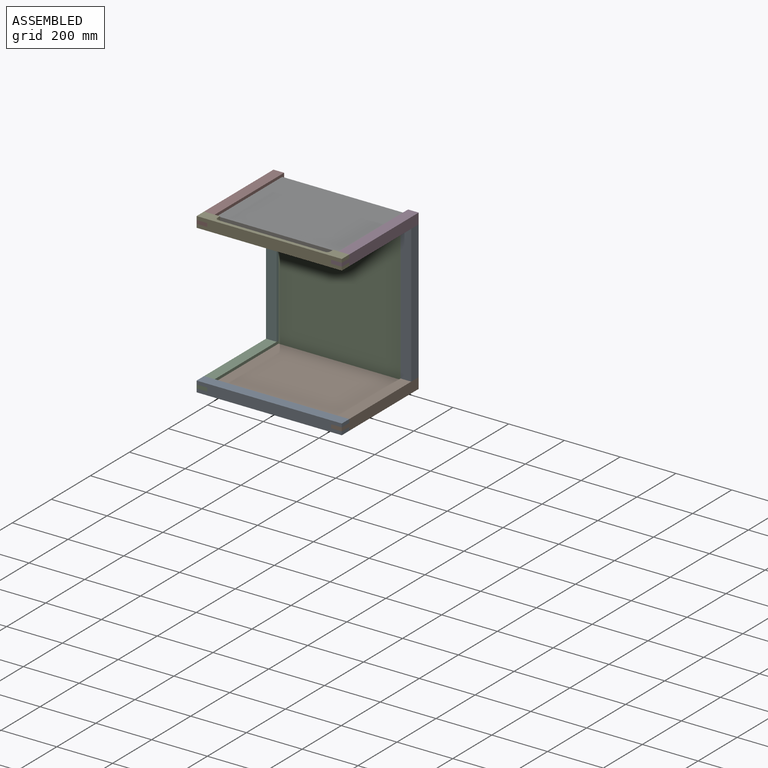
[diagram: assembled view]
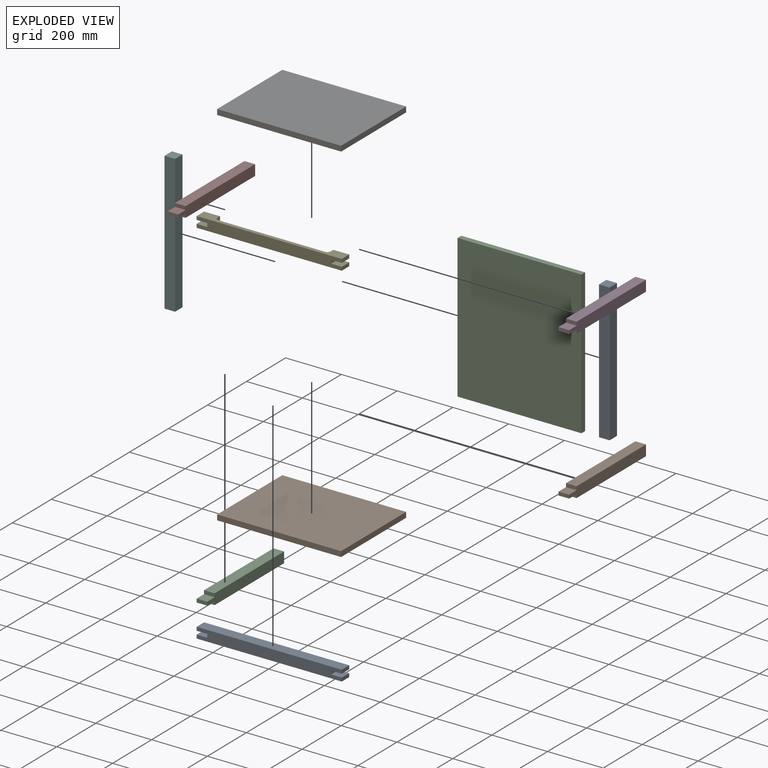
[diagram: exploded view]
GUIDED TOUR — MATED ASSEMBLY (Onshape document ec27074e484e8e78e18357a1, AutoMate assembly ec27074e484e8e78e18357a1_621d93bcc2abb67c88f440d8_a14cb2f1394db533b589dcd8_default)

This assembly has 11 components, labeled P0..P10 below (a component is one placed occurrence of a part; the same part can appear more than once), held together by 10 mates. A mate is a constraint between two components; its type names the relative motion it leaves free:
  FASTENED — locks the two components together rigidly (no relative motion).
Axis/direction vectors are unit vectors and 'through' points are millimeter coordinates, both in the assembly's world frame.

MATES
  1. FASTENED "Fastened 9": P5 <-> P7, direction (-1.000, 0.000, 0.000) through (-78.85, 422.66, 429.18) mm
  2. FASTENED "Fastened 3": P2 <-> P5, direction (-1.000, 0.000, 0.000) through (-78.85, 422.66, -66.12) mm
  3. FASTENED "Fastened 12": P10 <-> P9, direction (0.000, 1.000, 0.000) through (181.50, 413.13, -75.65) mm
  4. FASTENED "Fastened 8": P0 <-> P3, direction (1.000, 0.000, 0.000) through (441.85, 422.66, 429.18) mm
  5. FASTENED "Fastened 2": P8 <-> P1, direction (0.000, -1.000, 0.000) through (403.75, 28.96, -85.17) mm
  6. FASTENED "Fastened 1": P8 <-> P2, direction (0.000, -1.000, 0.000) through (-40.75, 28.96, -85.17) mm
  7. FASTENED "Fastened 10": P9 <-> P8, direction (0.000, 0.000, 1.000) through (181.50, 79.76, -75.65) mm
  8. FASTENED "Fastened 4": P0 <-> P1, direction (1.000, 0.000, 0.000) through (441.85, 422.66, -66.12) mm
  9. FASTENED "Fastened 7": P4 <-> P3, direction (1.000, 0.000, 0.000) through (441.85, 67.06, 467.28) mm
  10. FASTENED "Fastened 11": P6 <-> P4, direction (0.000, 0.000, 1.000) through (181.50, 79.76, 457.75) mm

ASSEMBLY ORDER
  1. P4 — the base component [order verified]
  2. P3 [order verified]
  3. P6 [order verified]
  4. P7 [order verified]
  5. P5 [order verified]
  6. P10 [order verified]
  7. P8 [order verified]
  8. P9 [order verified]
  9. P2 [order verified]
  10. P0 [order verified]
  11. P1 [order verified]
(P2, P3, P7 verified with a relaxed clearance tolerance: the source model stores slight part interference there.)
Order-tag legend:
  [order verified] — this step's position reverses a verified removal order: the component was checked to insert without passing through the ones already placed.

Of the 11 components, 11 carry the full construction recipe — the FeatureScript program that regenerates the part's solid from scratch; the rest are supplied as boundary geometry only.
Each toured component is shown spotlighted twice — in the assembled view, then in the exploded view, where a leader line traces a displaced component back to its assembled socket (saturated green if recipe-attached, orange if geometry-only; every other component desaturated gray) — followed by its recipe or geometry summary and the mates that hold it.
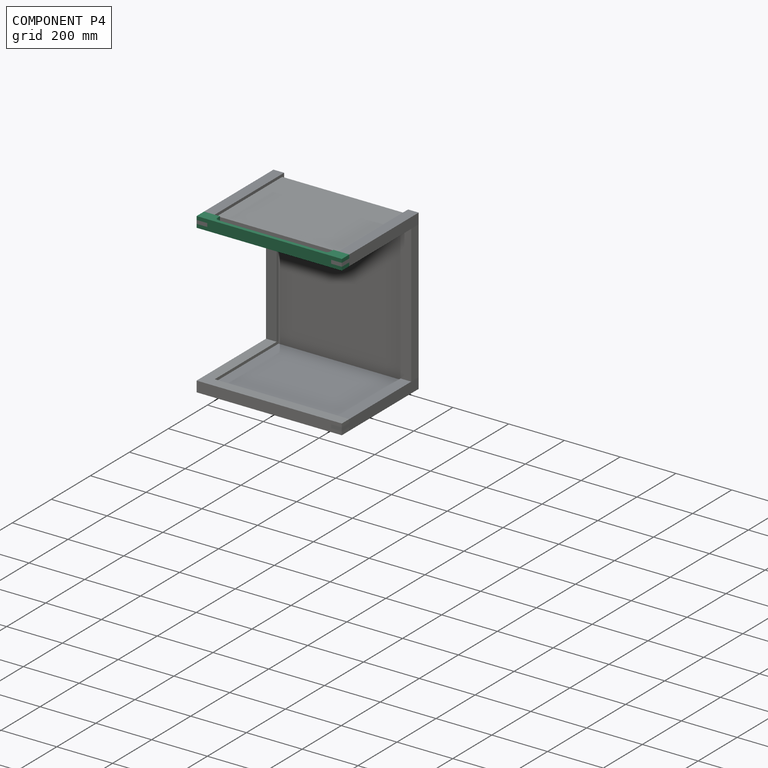
[diagram: component P4 — assembled]
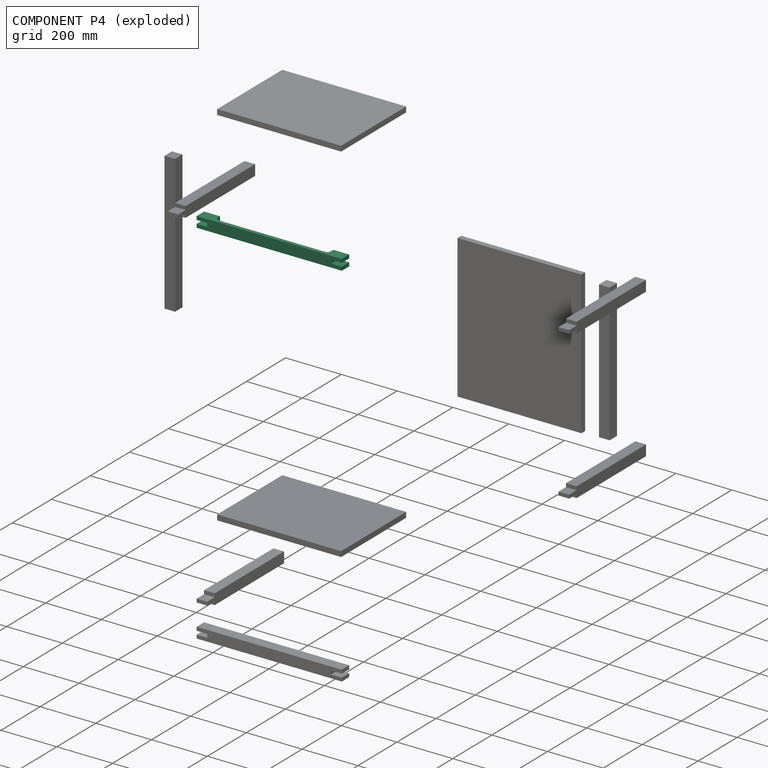
[diagram: component P4 — exploded]
COMPONENT P4 — recipe-attached (CADFS 00448515, mesh-verified: the recipe's output STEP matches this component's geometry to below the mesh-comparison resolution (tessellation chordal tolerance ~0.785 mm)).
Held by: FASTENED mate "Fastened 7" to P3; FASTENED mate "Fastened 11" to P6.
Construction recipe (FeatureScript — the CAD program that rebuilds this solid; sketch coordinates are in the units given by the * unit suffixes, e.g. mm):

FeatureScript 1511;
import(path : "onshape/std/geometry.fs", version : "1511.0");
import(path : "onshape/std/common.fs", version : "1511.0");
const mm = millimeter;
const VERTEX = EntityType.VERTEX;
const EDGE = EntityType.EDGE;
const FACE = EntityType.FACE;
const BODY = EntityType.BODY;
function v(x, y){return vector(x, y);}
function OD(order){return orderDisambiguation(order);}
function OSD(set){return originalSetDisambiguation(set);}
function TD(topology){return topologyDisambiguation(topology);}
function TDD(query){return trueDependencyDisambiguation(query);}
function sQuery(a, b, c) {return sketchEntityQuery(a, b, c);}

annotation { "Feature Type Name" : "Feature", "Feature Type Description" : "" }
export const myFeature = defineFeature(function(context is Context, id is Id, definition is map)
    precondition{}
    {
        {
            var Q0;
            Q0=qCreatedBy(makeId("Front.planeOp"),FACE);
            var sketch = newSketch(context, id + "F0", { "sketchPlane" : qUnion([Q0])});
            skLineSegment(sketch, "E0.bottom", {"start": v(0, 0) * mm, "end": v(520.7, 0) * mm});
            skLineSegment(sketch, "E0.top", {"start": v(0, -38.1) * mm, "end": v(520.7, -38.1) * mm});
            skLineSegment(sketch, "E0.left", {"start": v(0, 0) * mm, "end": v(0, -12.7) * mm});
            skLineSegment(sketch, "E0.right", {"start": v(520.7, 0) * mm, "end": v(520.7, -12.7) * mm});
            skLineSegment(sketch, "E1", {"start": v(0, -12.7) * mm, "end": v(38.1, -12.7) * mm});
            skLineSegment(sketch, "E2", {"start": v(38.1, -12.7) * mm, "end": v(38.1, -25.4) * mm});
            skLineSegment(sketch, "E3", {"start": v(38.1, -25.4) * mm, "end": v(0, -25.4) * mm});
            skLineSegment(sketch, "E4.trimOffspring", {"start": v(0, -25.4) * mm, "end": v(0, -38.1) * mm});
            skLineSegment(sketch, "E5.bottom", {"start": v(520.7, -12.7) * mm, "end": v(482.6, -12.7) * mm});
            skLineSegment(sketch, "E5.top", {"start": v(520.7, -25.4) * mm, "end": v(482.6, -25.4) * mm});
            skLineSegment(sketch, "E5.right", {"start": v(482.6, -12.7) * mm, "end": v(482.6, -25.4) * mm});
            skLineSegment(sketch, "E6.trimOffspring", {"start": v(520.7, -25.4) * mm, "end": v(520.7, -38.1) * mm});
            skSolve(sketch);
        }
        {
            var Q0;
            Q0=makeQuery(id+"F0.imprint","IMPRINT",FACE,{"disambiguationData":[TD([[makeQuery(id+"F0.imprint","IMPRINT",EDGE,{"derivedFrom":sQuery(id+"F0.wireOp",EDGE,"E0.bottom")}),-1.0]])]});
            extrude(context, id + "F1", {"entities" : qUnion([Q0]), "depth" : 38.1 * mm});
        }
        {
            var Q0;
            Q0=makeQuery(id+"F1.opExtrude","SWEPT_FACE",FACE,{"disambiguationData":[OSD([sQuery(id+"F0.wireOp",EDGE,"E0.right")])]});
            cPlane(context, id + "F2", {"entities" : qUnion([Q0]), "cplaneType" : CPlaneType.OFFSET, "offset" : 260.35 * mm, "oppositeDirection" : true, "width" : 152.4 * mm, "height" : 152.4 * mm});
        }
        {
            var Q0;
            Q0=qCreatedBy(id+"F2.planeOp",FACE);
            var sketch = newSketch(context, id + "F3", { "sketchPlane" : qUnion([Q0])});
            skLineSegment(sketch, "E7", {"start": v(0, 0) * mm, "end": v(0, -25.4) * mm});
            skLineSegment(sketch, "E8", {"start": v(0, 0) * mm, "end": v(-25.4, 0) * mm});
            skLineSegment(sketch, "E9", {"start": v(-25.4, 0) * mm, "end": v(0, -25.4) * mm});
            skSolve(sketch);
        }
        {
            var Q0;
            Q0 = qSketchRegion(id + "F3", true);
            extrude(context, id + "F4", {"entities" : qUnion([Q0]), "operationType" : NewBodyOperationType.REMOVE, "endBound" : BoundingType.SYMMETRIC, "oppositeDirection" : true, "depth" : 406.4 * mm, "offsetDistance" : 25.4 * mm});
        }
        {
            var Q0;
            Q0=makeQuery(id+"F4.boolean.opBoolean","COPY",EDGE,{"derivedFrom":makeQuery(id+"F4.opExtrude","CAP_EDGE",EDGE,{"disambiguationData":[OSD([sQuery(id+"F3.wireOp",EDGE,"E9")])],"isStart":true})});
            var Q1;
            Q1=makeQuery(id+"F4.boolean.opBoolean","COPY",EDGE,{"derivedFrom":makeQuery(id+"F4.opExtrude","CAP_EDGE",EDGE,{"disambiguationData":[OSD([sQuery(id+"F3.wireOp",EDGE,"E9")])],"isStart":false})});
            fillet(context, id + "F5", {"entities" : qUnion([Q0, Q1]), "radius" : 9.52 * mm, "tangentPropagation" : true, "allowEdgeOverflow" : false});
        }
    });
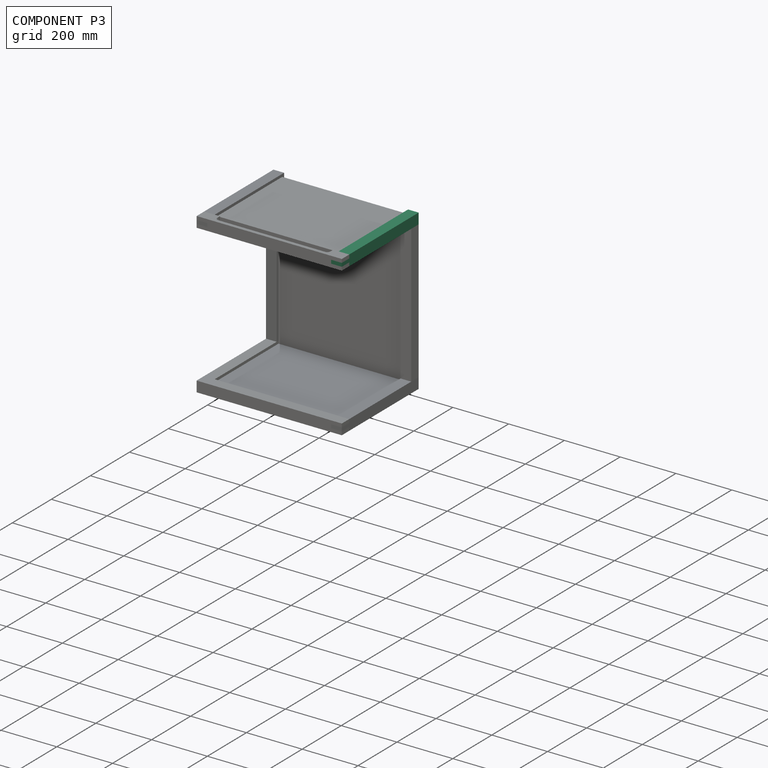
[diagram: component P3 — assembled]
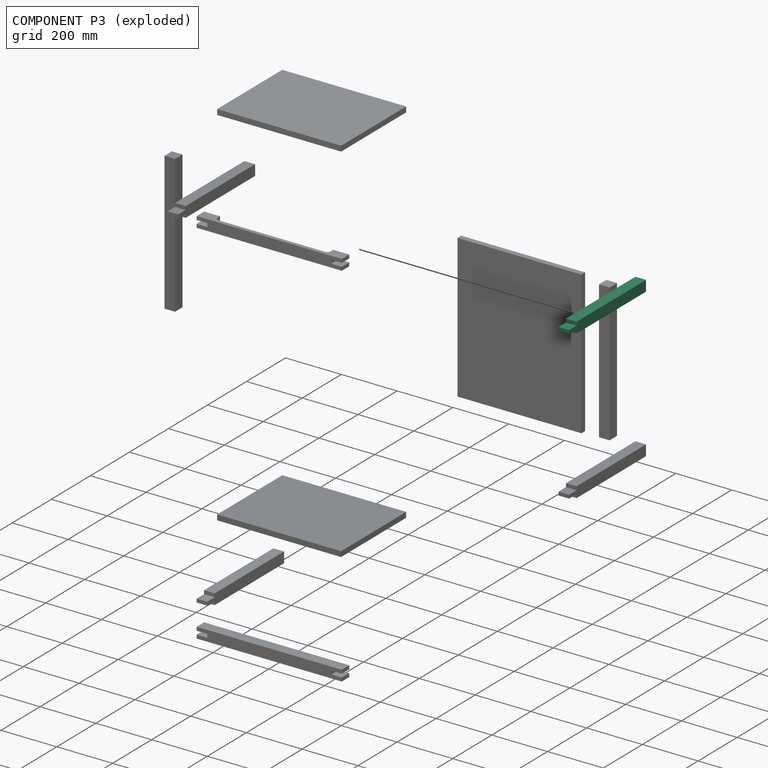
[diagram: component P3 — exploded]
COMPONENT P3 — same part as P1 (CADFS 00448516); its construction recipe is shown at P1.
Held by: FASTENED mate "Fastened 8" to P0; FASTENED mate "Fastened 7" to P4.
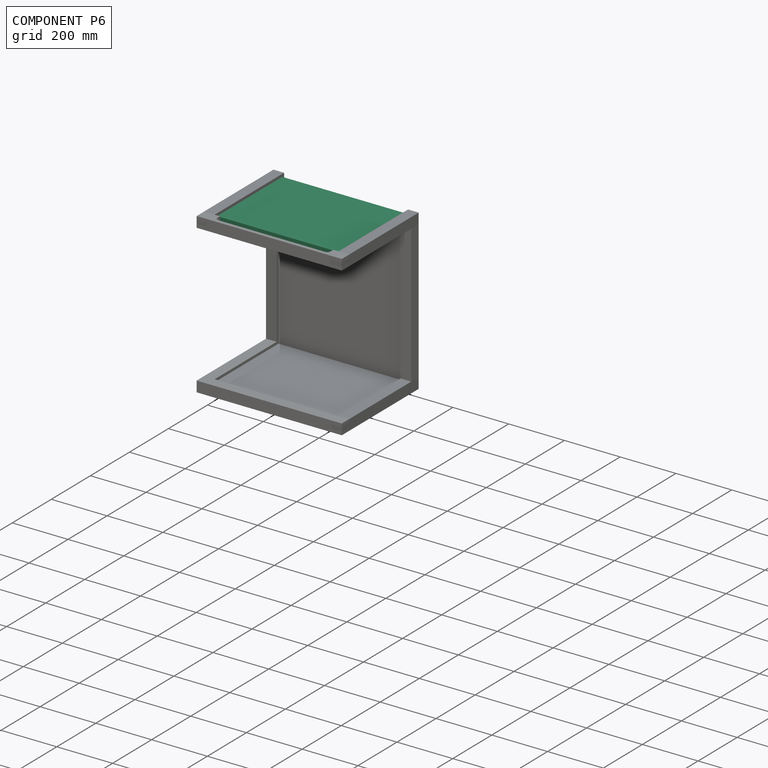
[diagram: component P6 — assembled]
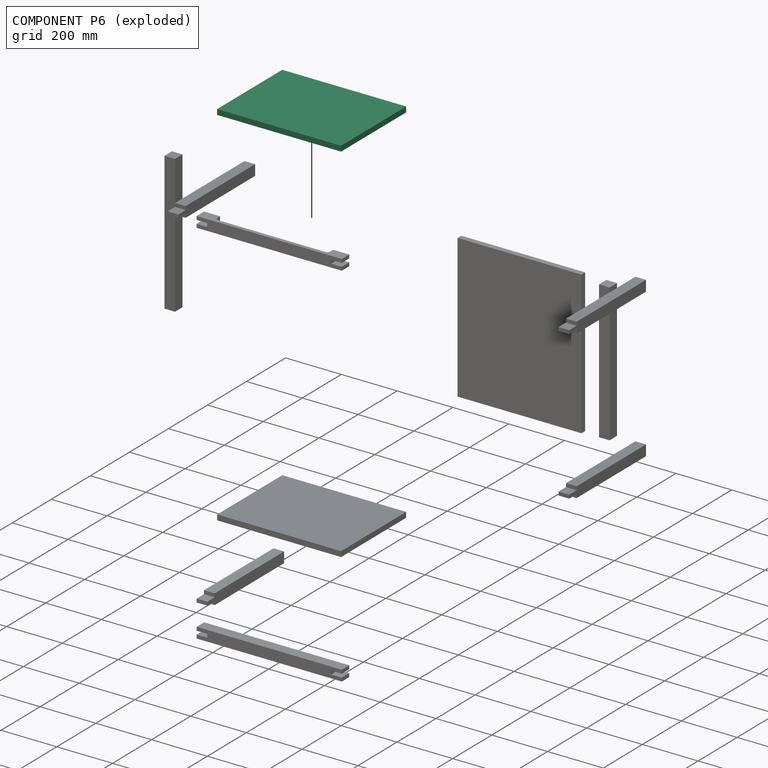
[diagram: component P6 — exploded]
COMPONENT P6 — recipe-attached (CADFS 00448521, mesh-verified: the recipe's output STEP matches this component's geometry to below the mesh-comparison resolution (tessellation chordal tolerance ~0.834 mm)).
Held by: FASTENED mate "Fastened 11" to P4.
Construction recipe (FeatureScript — the CAD program that rebuilds this solid; sketch coordinates are in the units given by the * unit suffixes, e.g. mm):

FeatureScript 1511;
import(path : "onshape/std/geometry.fs", version : "1511.0");
import(path : "onshape/std/common.fs", version : "1511.0");
const mm = millimeter;
const VERTEX = EntityType.VERTEX;
const EDGE = EntityType.EDGE;
const FACE = EntityType.FACE;
const BODY = EntityType.BODY;
function v(x, y){return vector(x, y);}
function OD(order){return orderDisambiguation(order);}
function OSD(set){return originalSetDisambiguation(set);}
function TD(topology){return topologyDisambiguation(topology);}
function TDD(query){return trueDependencyDisambiguation(query);}
function sQuery(a, b, c) {return sketchEntityQuery(a, b, c);}

annotation { "Feature Type Name" : "Feature", "Feature Type Description" : "" }
export const myFeature = defineFeature(function(context is Context, id is Id, definition is map)
    precondition{}
    {
        {
            var Q0;
            Q0=qCreatedBy(makeId("Front.planeOp"),FACE);
            var sketch = newSketch(context, id + "F0", { "sketchPlane" : qUnion([Q0])});
            skLineSegment(sketch, "E0.bottom", {"start": v(0, 0) * mm, "end": v(444.5, 0) * mm});
            skLineSegment(sketch, "E0.top", {"start": v(0, 333.38) * mm, "end": v(444.5, 333.38) * mm});
            skLineSegment(sketch, "E0.left", {"start": v(0, 0) * mm, "end": v(0, 333.38) * mm});
            skLineSegment(sketch, "E0.right", {"start": v(444.5, 0) * mm, "end": v(444.5, 333.38) * mm});
            skSolve(sketch);
        }
        {
            var Q0;
            Q0=makeQuery(id+"F0.imprint","IMPRINT",FACE,{"disambiguationData":[TD([[makeQuery(id+"F0.imprint","IMPRINT",EDGE,{"derivedFrom":sQuery(id+"F0.wireOp",EDGE,"E0.bottom")}),1.0]])]});
            extrude(context, id + "F1", {"entities" : qUnion([Q0]), "depth" : 19.05 * mm, "offsetDistance" : 25.4 * mm});
        }
    });
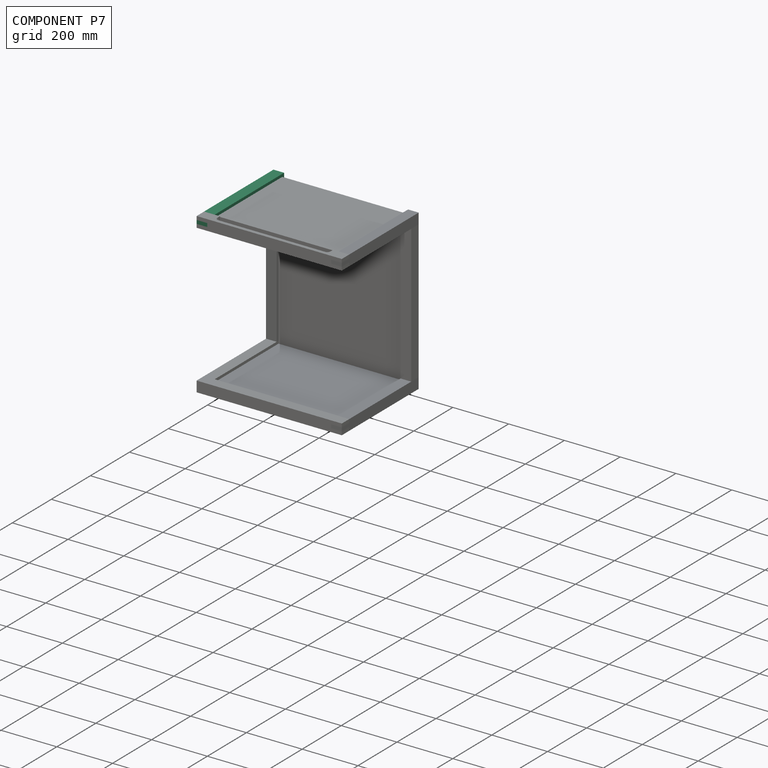
[diagram: component P7 — assembled]
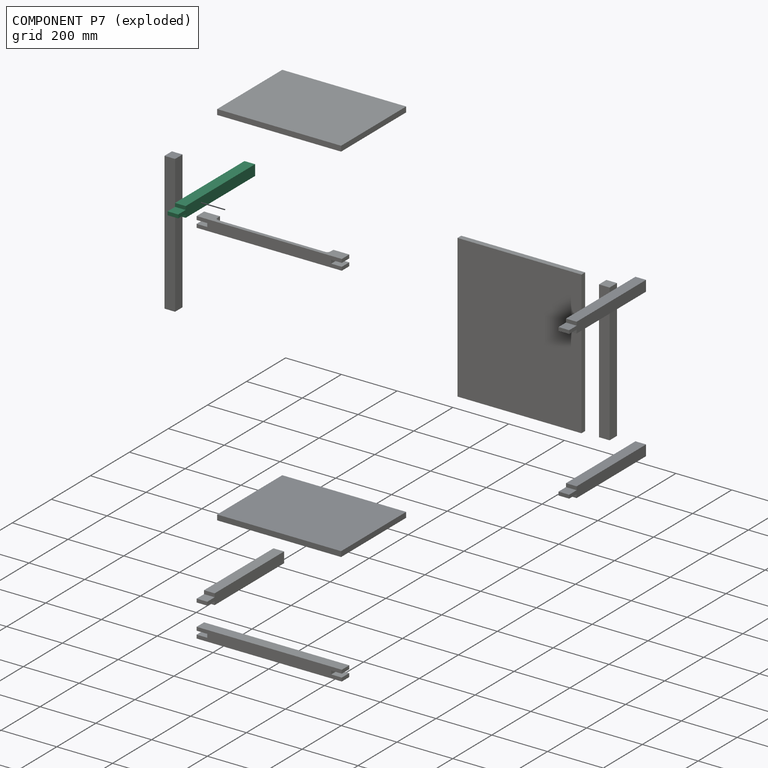
[diagram: component P7 — exploded]
COMPONENT P7 — same part as P1 (CADFS 00448516); its construction recipe is shown at P1.
Held by: FASTENED mate "Fastened 9" to P5.
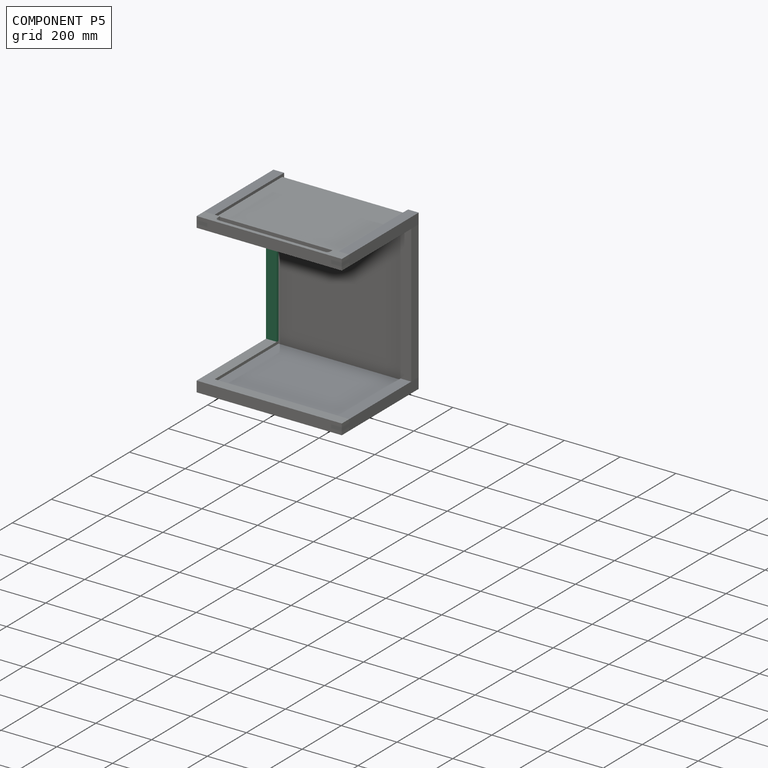
[diagram: component P5 — assembled]
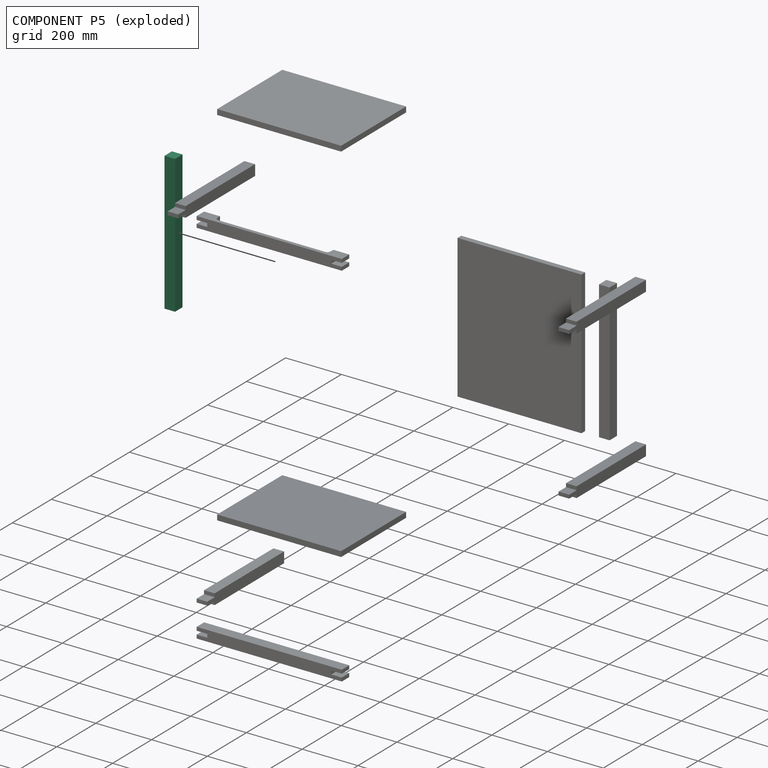
[diagram: component P5 — exploded]
COMPONENT P5 — same part as P0 (CADFS 00448518); its construction recipe is shown at P0.
Held by: FASTENED mate "Fastened 9" to P7; FASTENED mate "Fastened 3" to P2.
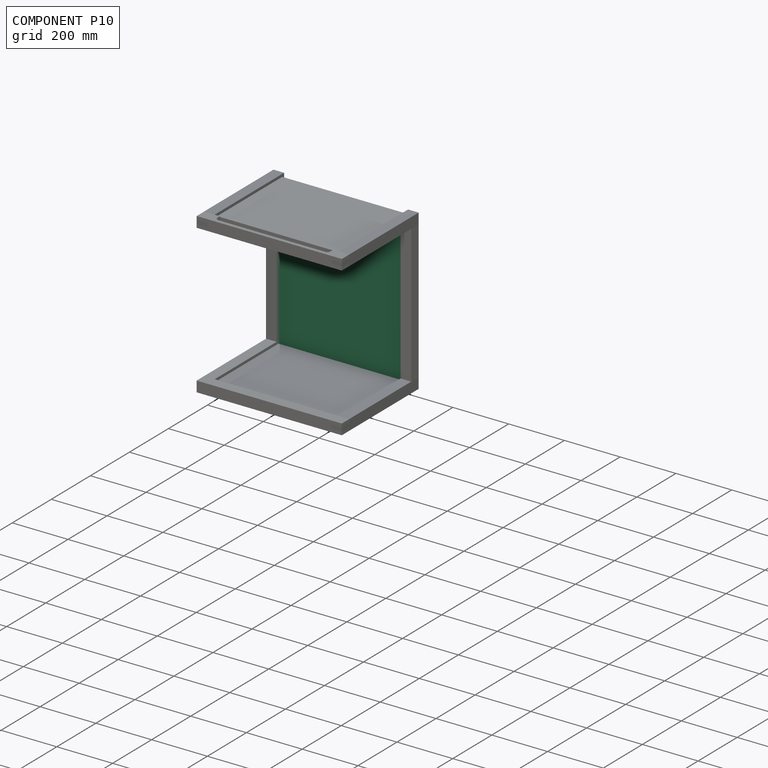
[diagram: component P10 — assembled]
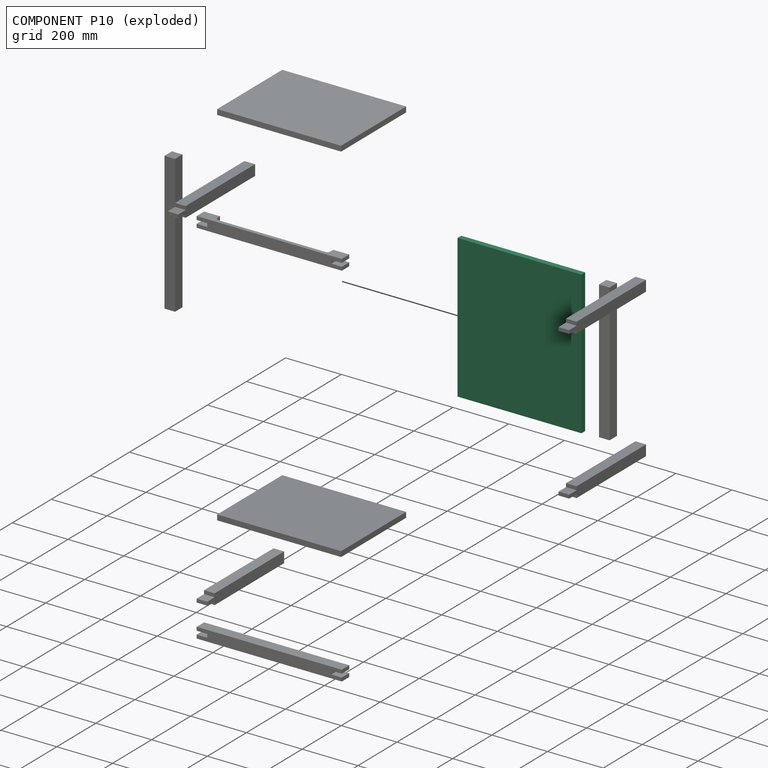
[diagram: component P10 — exploded]
COMPONENT P10 — recipe-attached (CADFS 00448522, mesh-verified: the recipe's output STEP matches this component's geometry to below the mesh-comparison resolution (tessellation chordal tolerance ~1.02 mm)).
Held by: FASTENED mate "Fastened 12" to P9.
Construction recipe (FeatureScript — the CAD program that rebuilds this solid; sketch coordinates are in the units given by the * unit suffixes, e.g. mm):

FeatureScript 1511;
import(path : "onshape/std/geometry.fs", version : "1511.0");
import(path : "onshape/std/common.fs", version : "1511.0");
const mm = millimeter;
const VERTEX = EntityType.VERTEX;
const EDGE = EntityType.EDGE;
const FACE = EntityType.FACE;
const BODY = EntityType.BODY;
function v(x, y){return vector(x, y);}
function OD(order){return orderDisambiguation(order);}
function OSD(set){return originalSetDisambiguation(set);}
function TD(topology){return topologyDisambiguation(topology);}
function TDD(query){return trueDependencyDisambiguation(query);}
function sQuery(a, b, c) {return sketchEntityQuery(a, b, c);}

annotation { "Feature Type Name" : "Feature", "Feature Type Description" : "" }
export const myFeature = defineFeature(function(context is Context, id is Id, definition is map)
    precondition{}
    {
        {
            var Q0;
            Q0=qCreatedBy(makeId("Front.planeOp"),FACE);
            var sketch = newSketch(context, id + "F0", { "sketchPlane" : qUnion([Q0])});
            skLineSegment(sketch, "E0.bottom", {"start": v(0, 0) * mm, "end": v(444.5, 0) * mm});
            skLineSegment(sketch, "E0.top", {"start": v(0, 514.35) * mm, "end": v(444.5, 514.35) * mm});
            skLineSegment(sketch, "E0.left", {"start": v(0, 0) * mm, "end": v(0, 514.35) * mm});
            skLineSegment(sketch, "E0.right", {"start": v(444.5, 0) * mm, "end": v(444.5, 514.35) * mm});
            skSolve(sketch);
        }
        {
            var Q0;
            Q0=makeQuery(id+"F0.imprint","IMPRINT",FACE,{"disambiguationData":[TD([[makeQuery(id+"F0.imprint","IMPRINT",EDGE,{"derivedFrom":sQuery(id+"F0.wireOp",EDGE,"E0.bottom")}),1.0]])]});
            extrude(context, id + "F1", {"entities" : qUnion([Q0]), "depth" : 19.05 * mm, "offsetDistance" : 25.4 * mm});
        }
    });
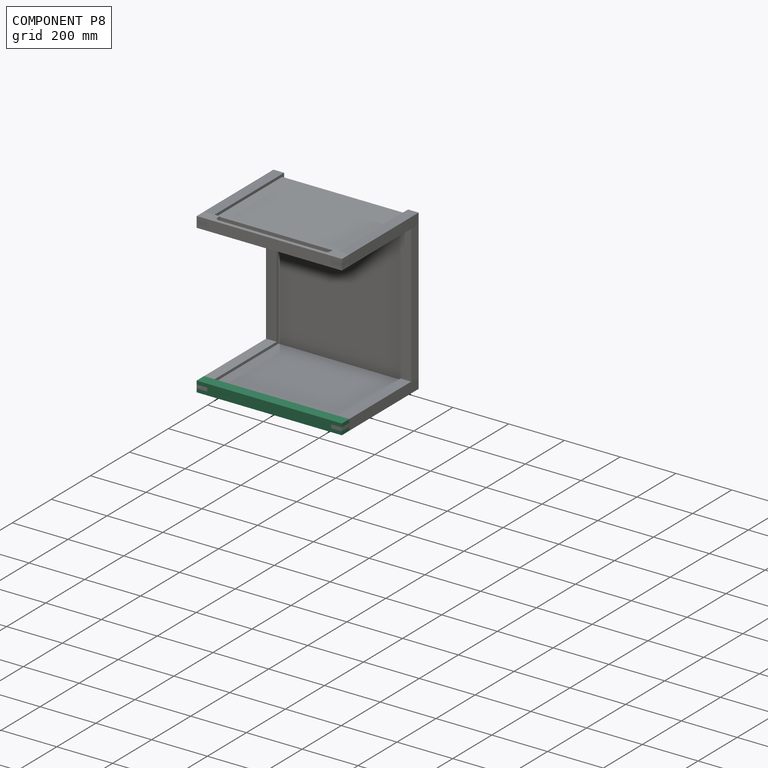
[diagram: component P8 — assembled]
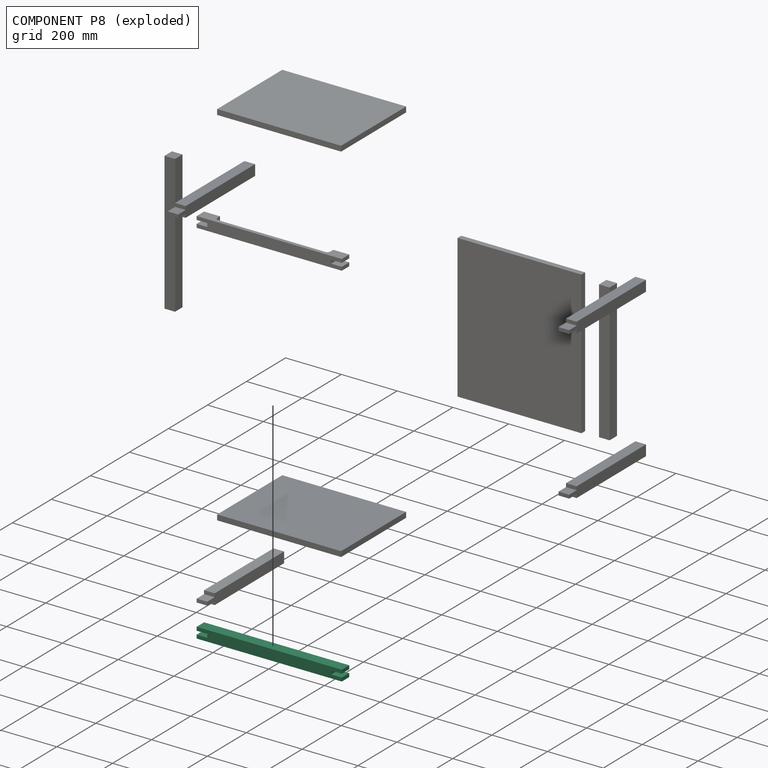
[diagram: component P8 — exploded]
COMPONENT P8 — recipe-attached (CADFS 00448514, mesh-verified: the recipe's output STEP matches this component's geometry to below the mesh-comparison resolution (tessellation chordal tolerance ~0.785 mm)).
Held by: FASTENED mate "Fastened 2" to P1; FASTENED mate "Fastened 1" to P2; FASTENED mate "Fastened 10" to P9.
Construction recipe (FeatureScript — the CAD program that rebuilds this solid; sketch coordinates are in the units given by the * unit suffixes, e.g. mm):

FeatureScript 1511;
import(path : "onshape/std/geometry.fs", version : "1511.0");
import(path : "onshape/std/common.fs", version : "1511.0");
const mm = millimeter;
const VERTEX = EntityType.VERTEX;
const EDGE = EntityType.EDGE;
const FACE = EntityType.FACE;
const BODY = EntityType.BODY;
function v(x, y){return vector(x, y);}
function OD(order){return orderDisambiguation(order);}
function OSD(set){return originalSetDisambiguation(set);}
function TD(topology){return topologyDisambiguation(topology);}
function TDD(query){return trueDependencyDisambiguation(query);}
function sQuery(a, b, c) {return sketchEntityQuery(a, b, c);}

annotation { "Feature Type Name" : "Feature", "Feature Type Description" : "" }
export const myFeature = defineFeature(function(context is Context, id is Id, definition is map)
    precondition{}
    {
        {
            var Q0;
            Q0=qCreatedBy(makeId("Front.planeOp"),FACE);
            var sketch = newSketch(context, id + "F0", { "sketchPlane" : qUnion([Q0])});
            skLineSegment(sketch, "E0.bottom", {"start": v(0, 0) * mm, "end": v(520.7, 0) * mm});
            skLineSegment(sketch, "E0.top", {"start": v(0, -38.1) * mm, "end": v(520.7, -38.1) * mm});
            skLineSegment(sketch, "E0.left", {"start": v(0, 0) * mm, "end": v(0, -12.7) * mm});
            skLineSegment(sketch, "E0.right", {"start": v(520.7, 0) * mm, "end": v(520.7, -12.7) * mm});
            skLineSegment(sketch, "E1", {"start": v(0, -12.7) * mm, "end": v(38.1, -12.7) * mm});
            skLineSegment(sketch, "E2", {"start": v(38.1, -12.7) * mm, "end": v(38.1, -25.4) * mm});
            skLineSegment(sketch, "E3", {"start": v(38.1, -25.4) * mm, "end": v(0, -25.4) * mm});
            skLineSegment(sketch, "E4.trimOffspring", {"start": v(0, -25.4) * mm, "end": v(0, -38.1) * mm});
            skLineSegment(sketch, "E5.bottom", {"start": v(520.7, -12.7) * mm, "end": v(482.6, -12.7) * mm});
            skLineSegment(sketch, "E5.top", {"start": v(520.7, -25.4) * mm, "end": v(482.6, -25.4) * mm});
            skLineSegment(sketch, "E5.right", {"start": v(482.6, -12.7) * mm, "end": v(482.6, -25.4) * mm});
            skLineSegment(sketch, "E6.trimOffspring", {"start": v(520.7, -25.4) * mm, "end": v(520.7, -38.1) * mm});
            skSolve(sketch);
        }
        {
            var Q0;
            Q0=makeQuery(id+"F0.imprint","IMPRINT",FACE,{"disambiguationData":[TD([[makeQuery(id+"F0.imprint","IMPRINT",EDGE,{"derivedFrom":sQuery(id+"F0.wireOp",EDGE,"E0.bottom")}),-1.0]])]});
            extrude(context, id + "F1", {"entities" : qUnion([Q0]), "depth" : 38.1 * mm});
        }
    });
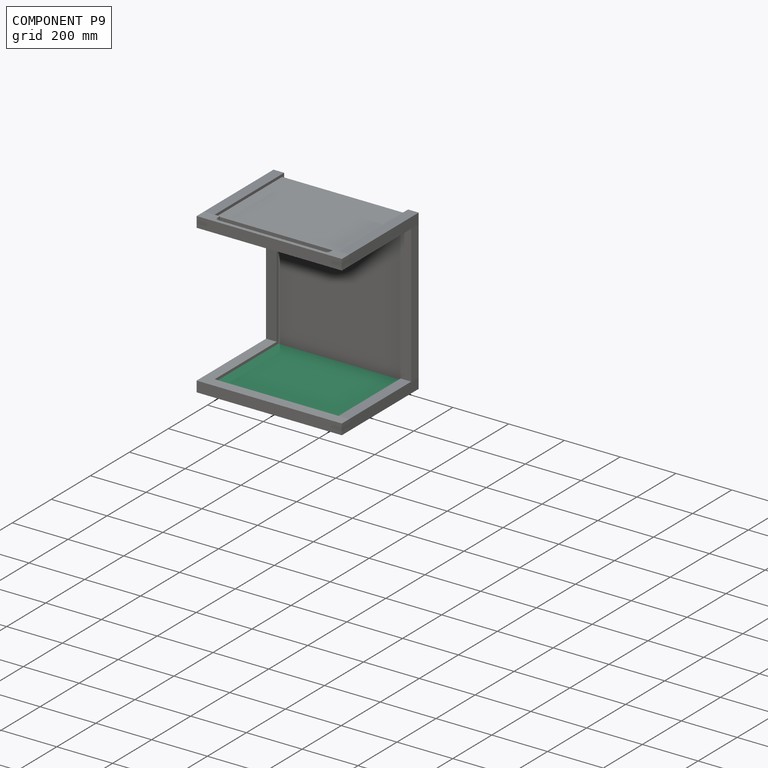
[diagram: component P9 — assembled]
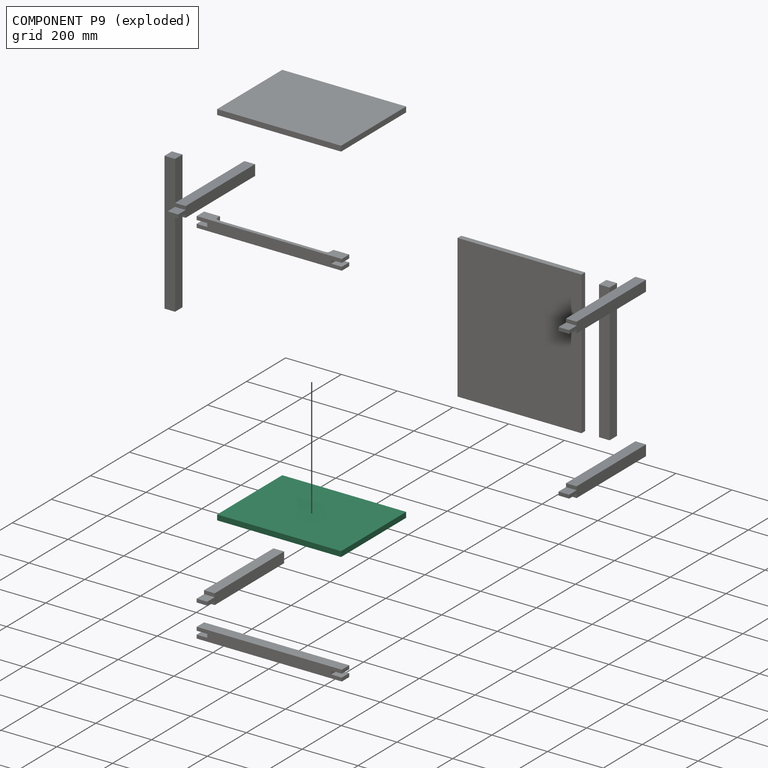
[diagram: component P9 — exploded]
COMPONENT P9 — same part as P6 (CADFS 00448521); its construction recipe is shown at P6.
Held by: FASTENED mate "Fastened 12" to P10; FASTENED mate "Fastened 10" to P8.
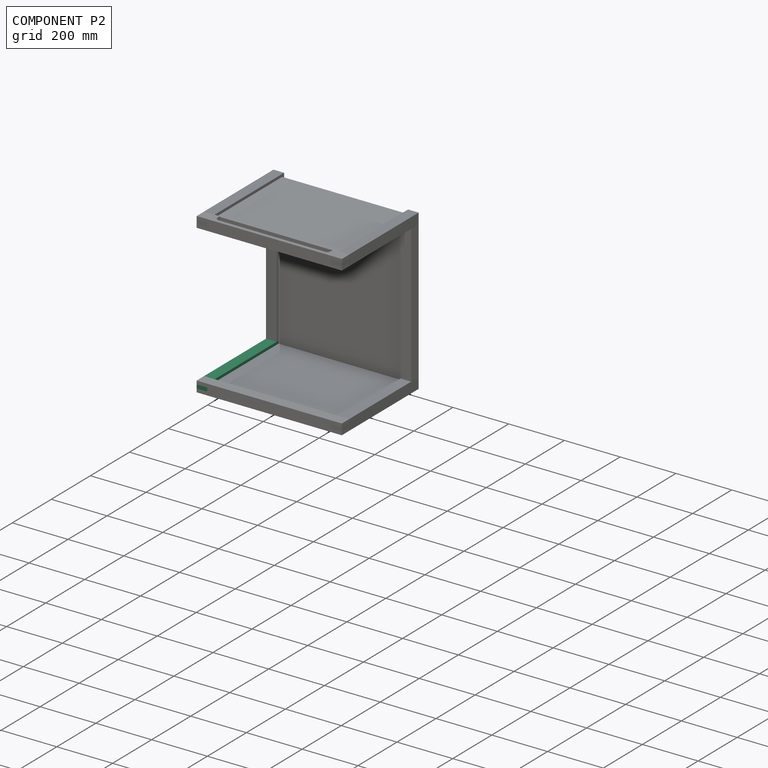
[diagram: component P2 — assembled]
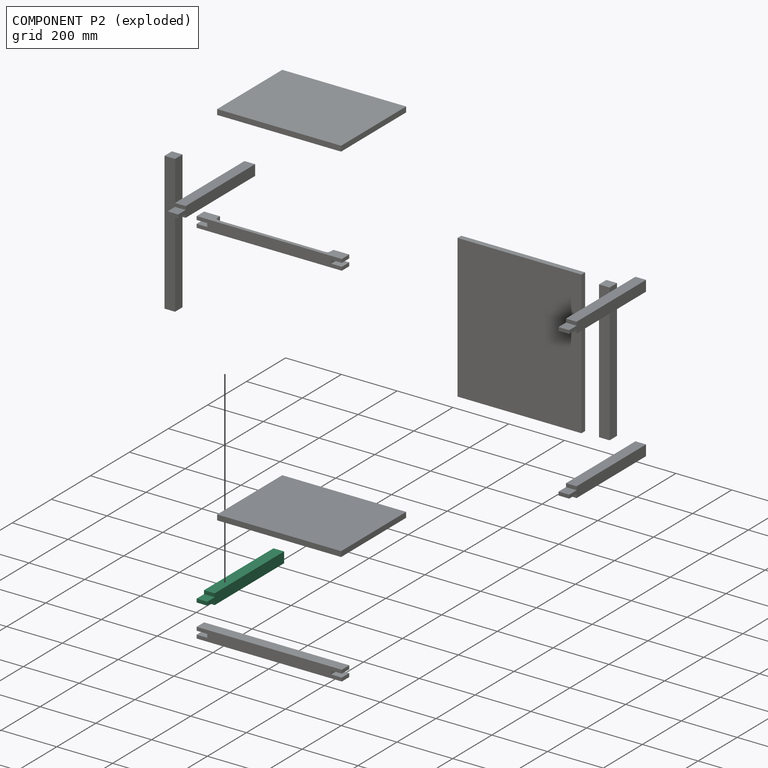
[diagram: component P2 — exploded]
COMPONENT P2 — same part as P1 (CADFS 00448516); its construction recipe is shown at P1.
Held by: FASTENED mate "Fastened 3" to P5; FASTENED mate "Fastened 1" to P8.
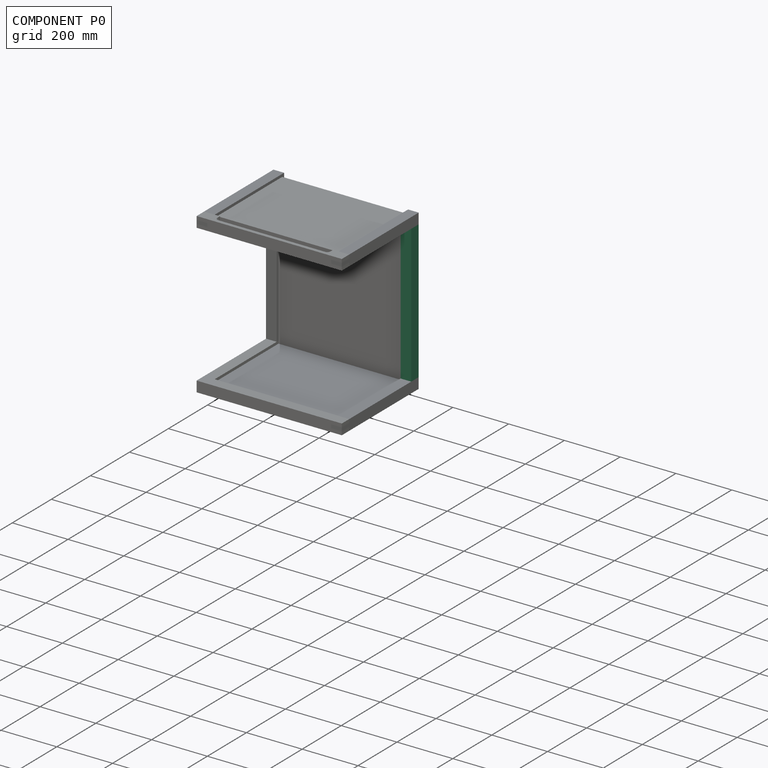
[diagram: component P0 — assembled]
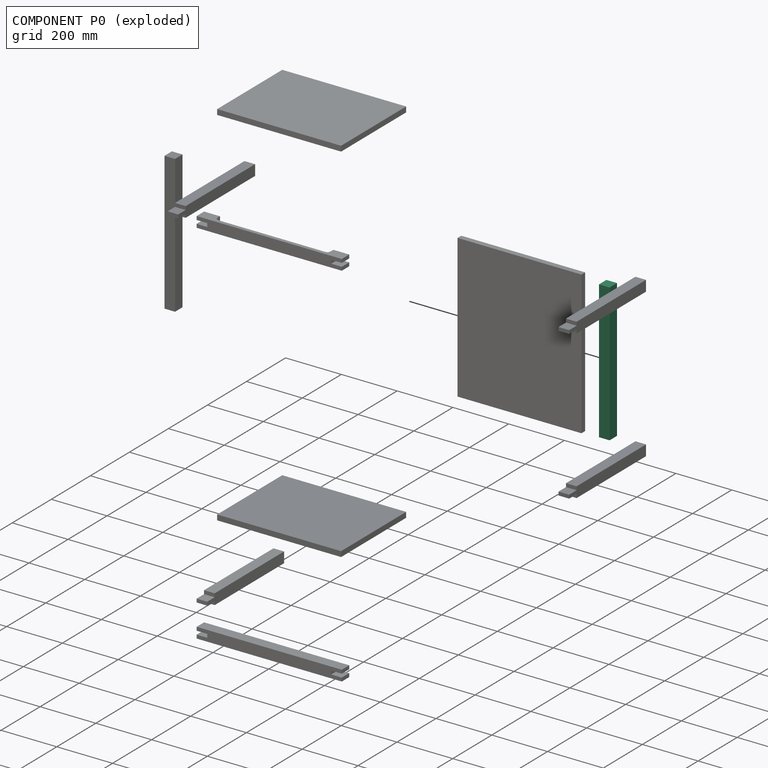
[diagram: component P0 — exploded]
COMPONENT P0 — recipe-attached (CADFS 00448518, mesh-verified: the recipe's output STEP matches this component's geometry to below the mesh-comparison resolution (tessellation chordal tolerance ~0.747 mm)).
Held by: FASTENED mate "Fastened 8" to P3; FASTENED mate "Fastened 4" to P1.
Construction recipe (FeatureScript — the CAD program that rebuilds this solid; sketch coordinates are in the units given by the * unit suffixes, e.g. mm):

FeatureScript 1511;
import(path : "onshape/std/geometry.fs", version : "1511.0");
import(path : "onshape/std/common.fs", version : "1511.0");
const mm = millimeter;
const VERTEX = EntityType.VERTEX;
const EDGE = EntityType.EDGE;
const FACE = EntityType.FACE;
const BODY = EntityType.BODY;
function v(x, y){return vector(x, y);}
function OD(order){return orderDisambiguation(order);}
function OSD(set){return originalSetDisambiguation(set);}
function TD(topology){return topologyDisambiguation(topology);}
function TDD(query){return trueDependencyDisambiguation(query);}
function sQuery(a, b, c) {return sketchEntityQuery(a, b, c);}

annotation { "Feature Type Name" : "Feature", "Feature Type Description" : "" }
export const myFeature = defineFeature(function(context is Context, id is Id, definition is map)
    precondition{}
    {
        {
            var Q0;
            Q0=qCreatedBy(makeId("Front.planeOp"),FACE);
            var sketch = newSketch(context, id + "F0", { "sketchPlane" : qUnion([Q0])});
            skLineSegment(sketch, "E0.bottom", {"start": v(0, 0) * mm, "end": v(495.3, 0) * mm});
            skLineSegment(sketch, "E0.top", {"start": v(0, -38.1) * mm, "end": v(495.3, -38.1) * mm});
            skLineSegment(sketch, "E0.right", {"start": v(495.3, 0) * mm, "end": v(495.3, -38.1) * mm});
            skLineSegment(sketch, "E1", {"start": v(0, -38.1) * mm, "end": v(0, 0) * mm});
            skSolve(sketch);
        }
        {
            var Q0;
            Q0=makeQuery(id+"F0.imprint","IMPRINT",FACE,{"disambiguationData":[TD([[makeQuery(id+"F0.imprint","IMPRINT",EDGE,{"derivedFrom":sQuery(id+"F0.wireOp",EDGE,"E0.bottom")}),-1.0]])]});
            extrude(context, id + "F1", {"entities" : qUnion([Q0]), "depth" : 38.1 * mm});
        }
    });
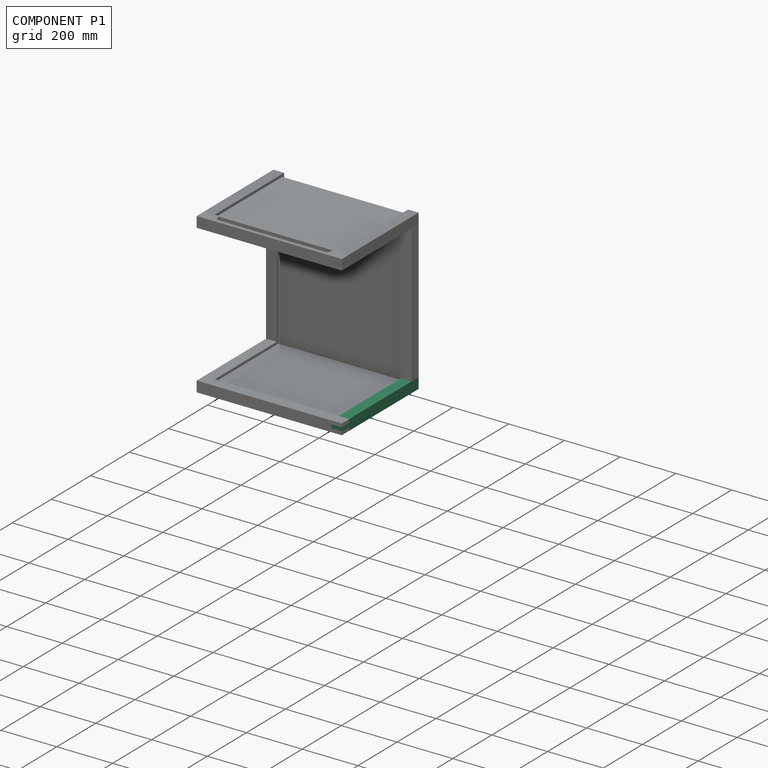
[diagram: component P1 — assembled]
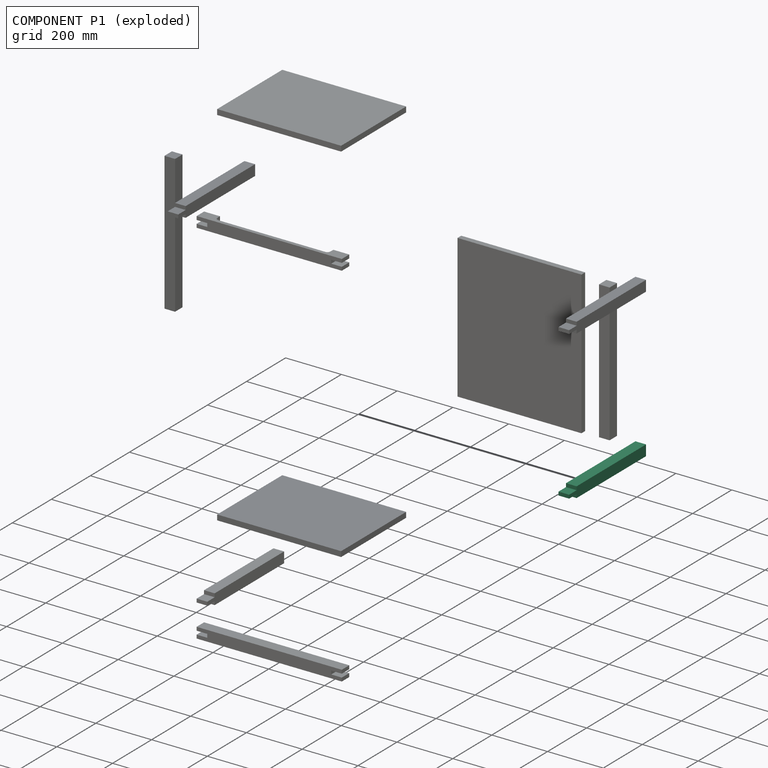
[diagram: component P1 — exploded]
COMPONENT P1 — recipe-attached (CADFS 00448516, mesh-verified: the recipe's output STEP matches this component's geometry to below the mesh-comparison resolution (tessellation chordal tolerance ~0.596 mm)).
Held by: FASTENED mate "Fastened 2" to P8; FASTENED mate "Fastened 4" to P0.
Construction recipe (FeatureScript — the CAD program that rebuilds this solid; sketch coordinates are in the units given by the * unit suffixes, e.g. mm):

FeatureScript 1511;
import(path : "onshape/std/geometry.fs", version : "1511.0");
import(path : "onshape/std/common.fs", version : "1511.0");
const mm = millimeter;
const VERTEX = EntityType.VERTEX;
const EDGE = EntityType.EDGE;
const FACE = EntityType.FACE;
const BODY = EntityType.BODY;
function v(x, y){return vector(x, y);}
function OD(order){return orderDisambiguation(order);}
function OSD(set){return originalSetDisambiguation(set);}
function TD(topology){return topologyDisambiguation(topology);}
function TDD(query){return trueDependencyDisambiguation(query);}
function sQuery(a, b, c) {return sketchEntityQuery(a, b, c);}

annotation { "Feature Type Name" : "Feature", "Feature Type Description" : "" }
export const myFeature = defineFeature(function(context is Context, id is Id, definition is map)
    precondition{}
    {
        {
            var Q0;
            Q0=qCreatedBy(makeId("Front.planeOp"),FACE);
            var sketch = newSketch(context, id + "F0", { "sketchPlane" : qUnion([Q0])});
            skLineSegment(sketch, "E0.bottom", {"start": v(38.1, 0) * mm, "end": v(393.7, 0) * mm});
            skLineSegment(sketch, "E0.top", {"start": v(38.1, -38.1) * mm, "end": v(393.7, -38.1) * mm});
            skLineSegment(sketch, "E0.right", {"start": v(393.7, 0) * mm, "end": v(393.7, -38.1) * mm});
            skLineSegment(sketch, "E1", {"start": v(0, -12.7) * mm, "end": v(38.1, -12.7) * mm});
            skLineSegment(sketch, "E2", {"start": v(38.1, -25.4) * mm, "end": v(0, -25.4) * mm});
            skLineSegment(sketch, "E3", {"start": v(38.1, -12.7) * mm, "end": v(38.1, 0) * mm});
            skLineSegment(sketch, "E4", {"start": v(38.1, 0) * mm, "end": v(38.1, -12.7) * mm});
            skLineSegment(sketch, "E5", {"start": v(38.1, -25.4) * mm, "end": v(38.1, -38.1) * mm});
            skLineSegment(sketch, "E6", {"start": v(0, -12.7) * mm, "end": v(0, -25.4) * mm});
            skSolve(sketch);
        }
        {
            var Q0;
            Q0=makeQuery(id+"F0.imprint","IMPRINT",FACE,{"disambiguationData":[TD([[makeQuery(id+"F0.imprint","IMPRINT",EDGE,{"derivedFrom":sQuery(id+"F0.wireOp",EDGE,"E0.bottom")}),-1.0]])]});
            extrude(context, id + "F1", {"entities" : qUnion([Q0]), "depth" : 38.1 * mm});
        }
    });
PROVENANCE & LICENSES
Assembly (occurrences, transforms, mates, per-part STEP geometry): AutoMate dataset, Zenodo record 7776208, CC0.
Construction recipes: CADFS (HuggingFace VladPyatov/CADFS, CC-BY-4.0, layered over the ABC dataset), FeatureScript reconstruction programs keyed by ABC model id.
Join: ABC meta listings map ABC model id -> Onshape documentId; within a shared document, parts are matched by geometric signature (bounding-box dims + volume at 0.1% relative tolerance, exact B-rep face/solid counts).
Verification: 11 of this assembly's 11 components carry a recipe attachment, and every attachment is mesh-verified: the CADFS STEP and the AutoMate member STEP were compared as meshes in their shared local frame (symmetric sampled-point-to-mesh distance); worst across the 11 attachments: below the mesh-comparison resolution (tessellation chordal tolerance ~1.02 mm) on a 680 mm part.
Renders: orthographic iso camera (az 35 / el 25); the floor grid conveys scale (grid pitch printed in each image; no ruler). In the exploded view each component is displaced by its stored offset vector: the offsets alone carry the explosion direction (mate normal/axis signs are not orientation cues and do not encode it), and separation distances are assigned per mate-chain, not proportionally to assembly-order depth.
